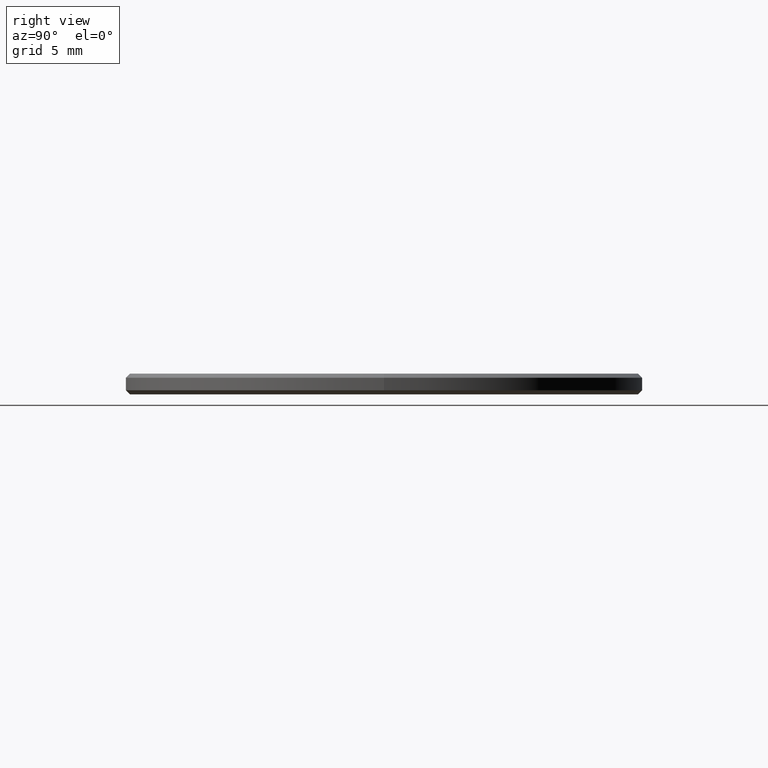
[diagram: clean part render]
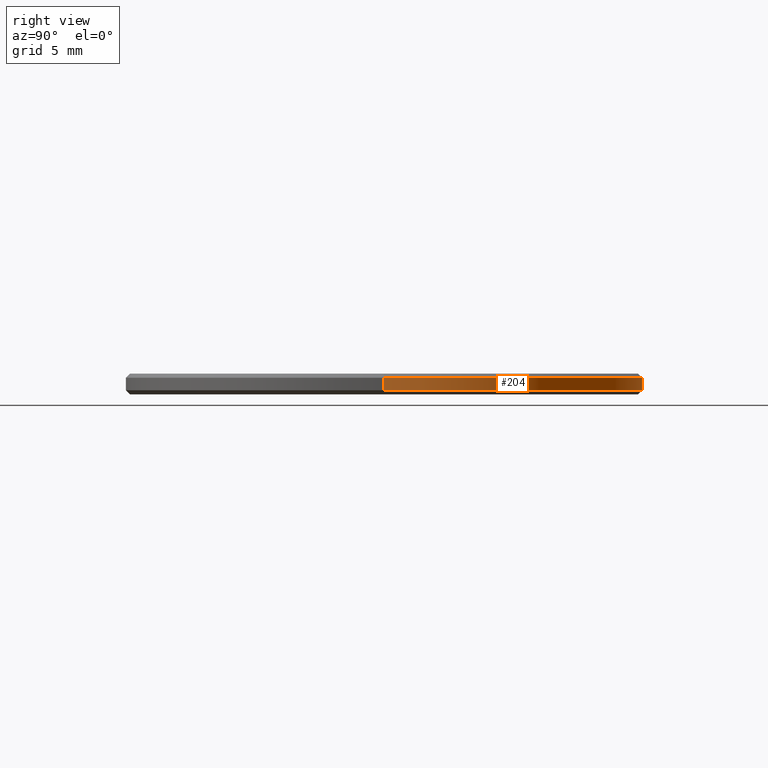
[diagram: same view with one face highlighted and labeled with its STEP entity id]
A machine part, right view. The second image highlights one B-rep face of the part: STEP entity #204.
In plain terms, the highlighted cylindrical surface (partial cylindrical patch) has radius 12.5 mm, axis along (-0, -0, -1).
Its self-contained STEP definition (entity closure, byte-faithful):
#8 = AXIS2_PLACEMENT_3D ( 'NONE', #121, #104, #176 ) ;
#15 = ORIENTED_EDGE ( 'NONE', *, *, #40, .T. ) ;
#17 = ORIENTED_EDGE ( 'NONE', *, *, #45, .F. ) ;
#18 = DIRECTION ( 'NONE',  ( 1.000000000000000000, 0.000000000000000000, 0.000000000000000000 ) ) ;
#20 = AXIS2_PLACEMENT_3D ( 'NONE', #63, #134, #18 ) ;
#23 = VERTEX_POINT ( 'NONE', #94 ) ;
#24 = CARTESIAN_POINT ( 'NONE',  ( 0.000000000000000000, 0.000000000000000000, 0.1999999999999987899 ) ) ;
#31 = VECTOR ( 'NONE', #169, 1000.000000000000000 ) ;
#40 = EDGE_CURVE ( 'NONE', #115, #23, #138, .T. ) ;
#42 = CARTESIAN_POINT ( 'NONE',  ( -12.50000000000000000, 0.000000000000000000, 1.000000000000000000 ) ) ;
#45 = EDGE_CURVE ( 'NONE', #115, #92, #98, .T. ) ;
#49 = CYLINDRICAL_SURFACE ( 'NONE', #8, 12.50000000000000000 ) ;
#51 = DIRECTION ( 'NONE',  ( -0.000000000000000000, -0.000000000000000000, -1.000000000000000000 ) ) ;
#58 = ORIENTED_EDGE ( 'NONE', *, *, #69, .T. ) ;
#63 = CARTESIAN_POINT ( 'NONE',  ( 0.000000000000000000, 0.000000000000000000, 0.8000000000000029310 ) ) ;
#69 = EDGE_CURVE ( 'NONE', #23, #240, #230, .T. ) ;
#92 = VERTEX_POINT ( 'NONE', #171 ) ;
#94 = CARTESIAN_POINT ( 'NONE',  ( 12.50000000000000000, 1.530808498934191521E-15, 0.8000000000000029310 ) ) ;
#98 = LINE ( 'NONE', #42, #31 ) ;
#104 = DIRECTION ( 'NONE',  ( -0.000000000000000000, -0.000000000000000000, -1.000000000000000000 ) ) ;
#115 = VERTEX_POINT ( 'NONE', #190 ) ;
#117 = CIRCLE ( 'NONE', #198, 12.50000000000000000 ) ;
#118 = DIRECTION ( 'NONE',  ( 1.000000000000000000, 0.000000000000000000, 0.000000000000000000 ) ) ;
#119 = DIRECTION ( 'NONE',  ( -0.000000000000000000, -0.000000000000000000, 1.000000000000000000 ) ) ;
#121 = CARTESIAN_POINT ( 'NONE',  ( 0.000000000000000000, 0.000000000000000000, 1.000000000000000000 ) ) ;
#123 = EDGE_CURVE ( 'NONE', #240, #92, #117, .T. ) ;
#134 = DIRECTION ( 'NONE',  ( 0.000000000000000000, 0.000000000000000000, -1.000000000000000000 ) ) ;
#135 = CARTESIAN_POINT ( 'NONE',  ( 12.50000000000000000, 1.530808498934191521E-15, 1.000000000000000000 ) ) ;
#138 = CIRCLE ( 'NONE', #20, 12.50000000000000000 ) ;
#145 = VECTOR ( 'NONE', #51, 1000.000000000000000 ) ;
#165 = EDGE_LOOP ( 'NONE', ( #15, #58, #168, #17 ) ) ;
#168 = ORIENTED_EDGE ( 'NONE', *, *, #123, .T. ) ;
#169 = DIRECTION ( 'NONE',  ( -0.000000000000000000, -0.000000000000000000, -1.000000000000000000 ) ) ;
#171 = CARTESIAN_POINT ( 'NONE',  ( -12.50000000000000000, 0.000000000000000000, 0.1999999999999987899 ) ) ;
#176 = DIRECTION ( 'NONE',  ( -1.000000000000000000, 0.000000000000000000, 0.000000000000000000 ) ) ;
#186 = FACE_OUTER_BOUND ( 'NONE', #165, .T. ) ;
#190 = CARTESIAN_POINT ( 'NONE',  ( -12.50000000000000000, 0.000000000000000000, 0.8000000000000029310 ) ) ;
#198 = AXIS2_PLACEMENT_3D ( 'NONE', #24, #119, #118 ) ;
#204 = ADVANCED_FACE ( 'NONE', ( #186 ), #49, .T. ) ;
#230 = LINE ( 'NONE', #135, #145 ) ;
#239 = CARTESIAN_POINT ( 'NONE',  ( 12.50000000000000000, 1.530808498934191521E-15, 0.1999999999999987899 ) ) ;
#240 = VERTEX_POINT ( 'NONE', #239 ) ;